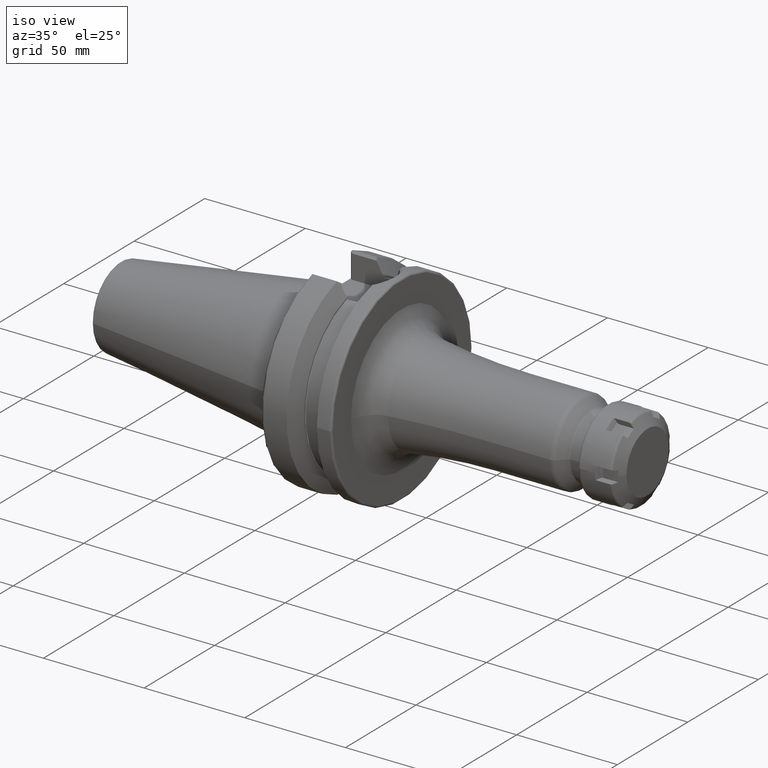
[diagram: clean part render]
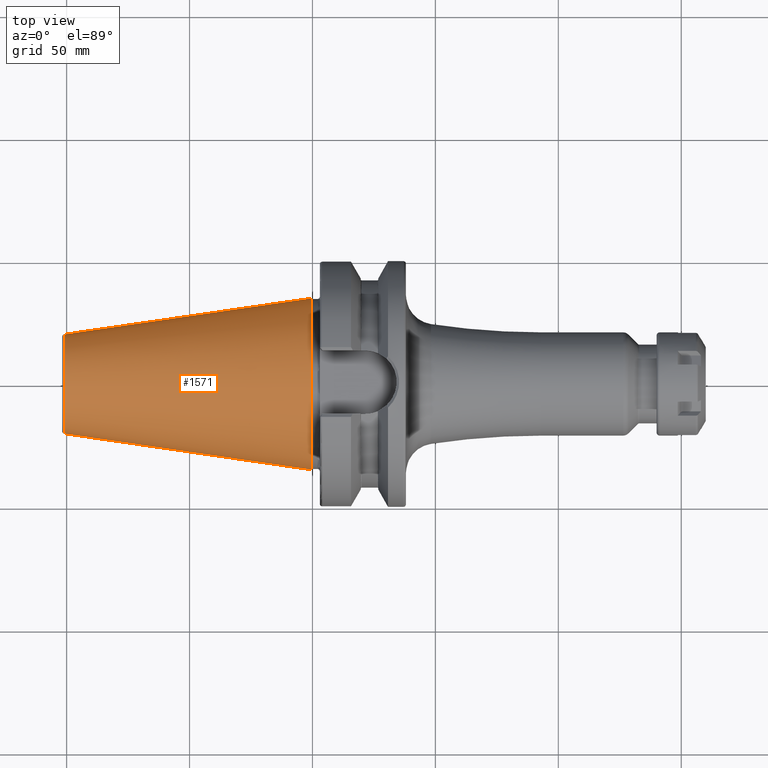
[diagram: tour spotlight — one face highlighted and labeled with its STEP entity id]
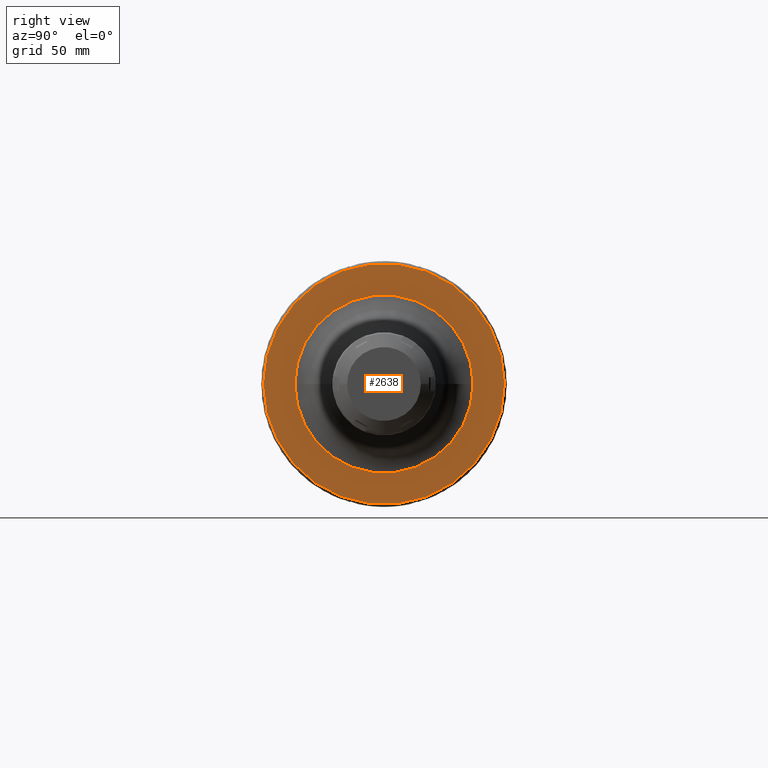
[diagram: tour spotlight — one face highlighted and labeled with its STEP entity id]
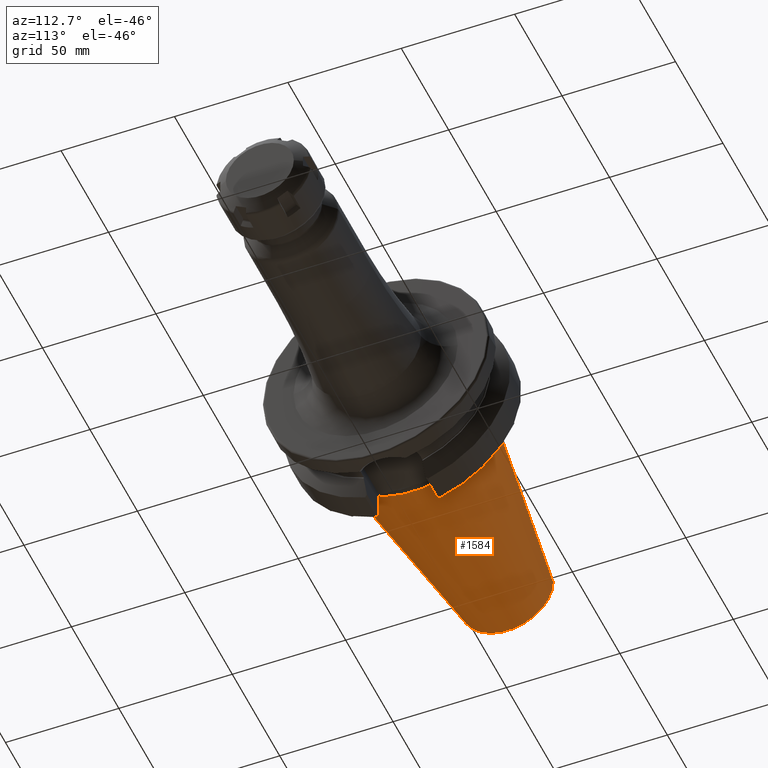
[diagram: tour spotlight — one face highlighted and labeled with its STEP entity id]
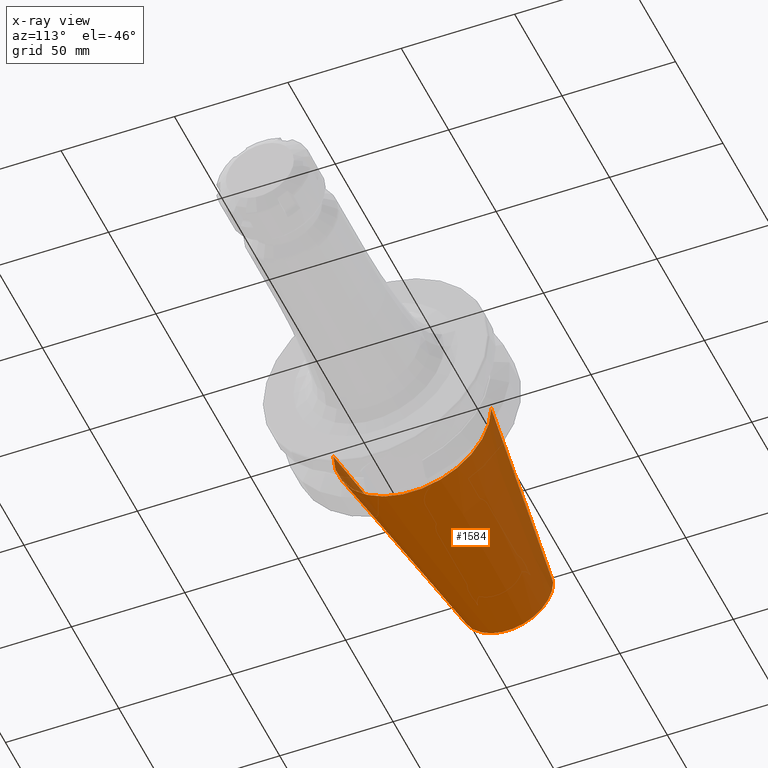
[diagram: x-ray of the same camera — body ghosted, this tour face saturated]
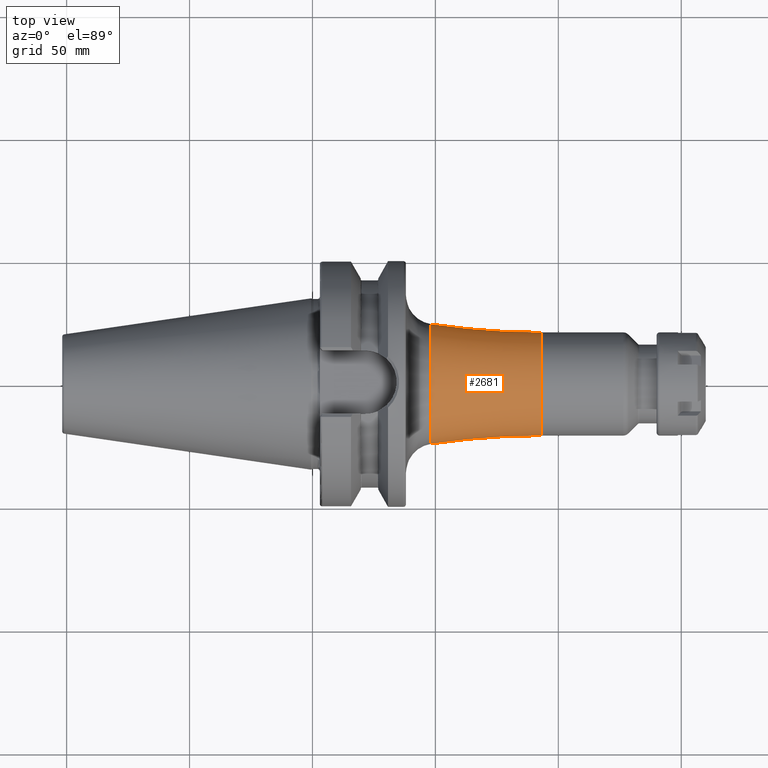
[diagram: tour spotlight — one face highlighted and labeled with its STEP entity id]
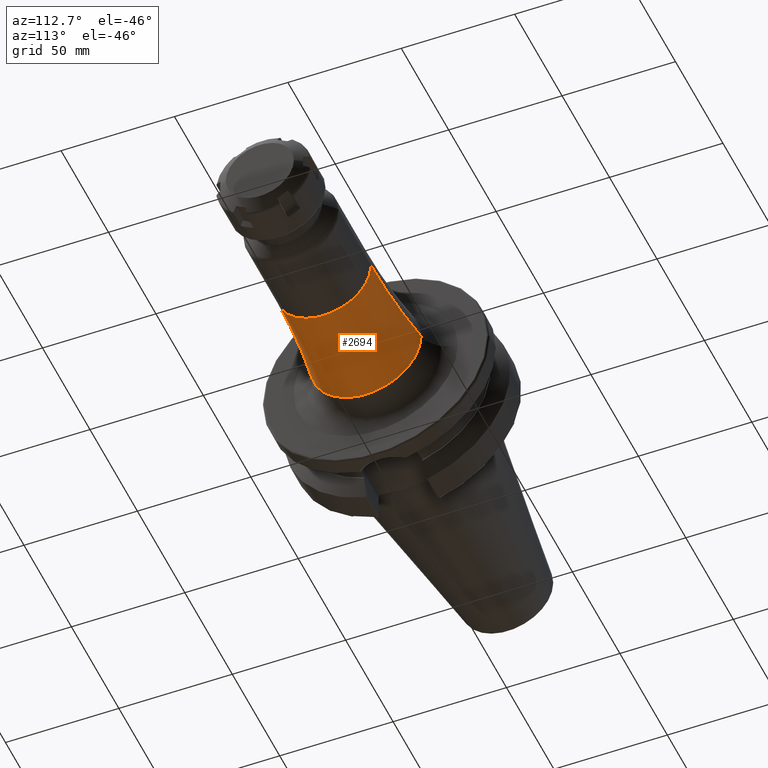
[diagram: tour spotlight — one face highlighted and labeled with its STEP entity id]
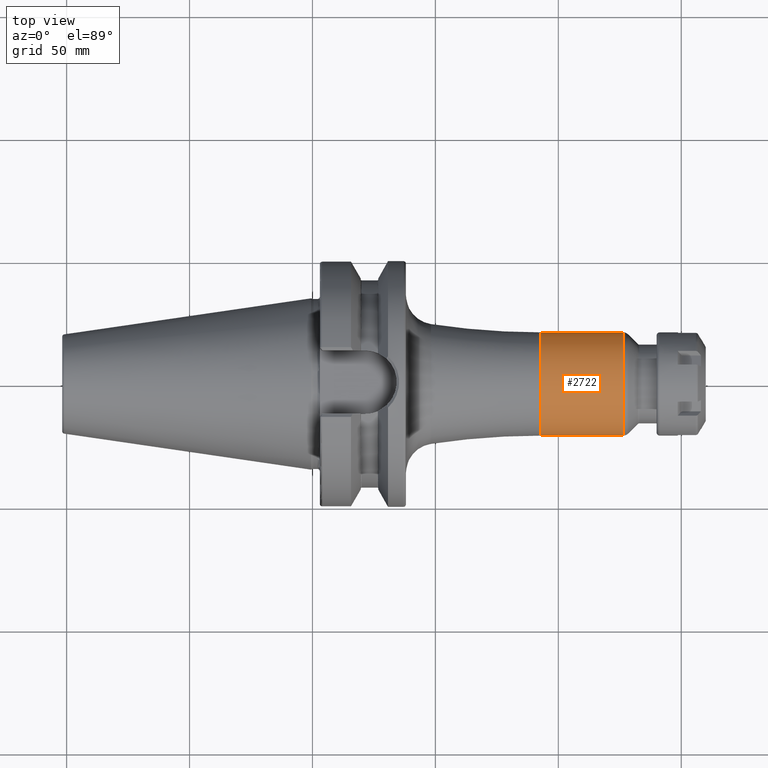
[diagram: tour spotlight — one face highlighted and labeled with its STEP entity id]
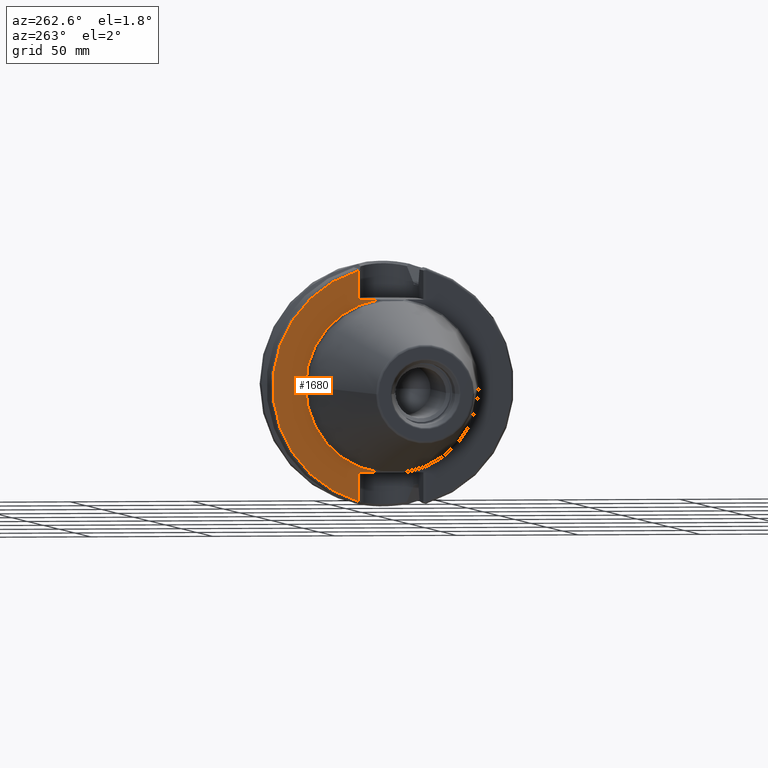
[diagram: tour spotlight — one face highlighted and labeled with its STEP entity id]
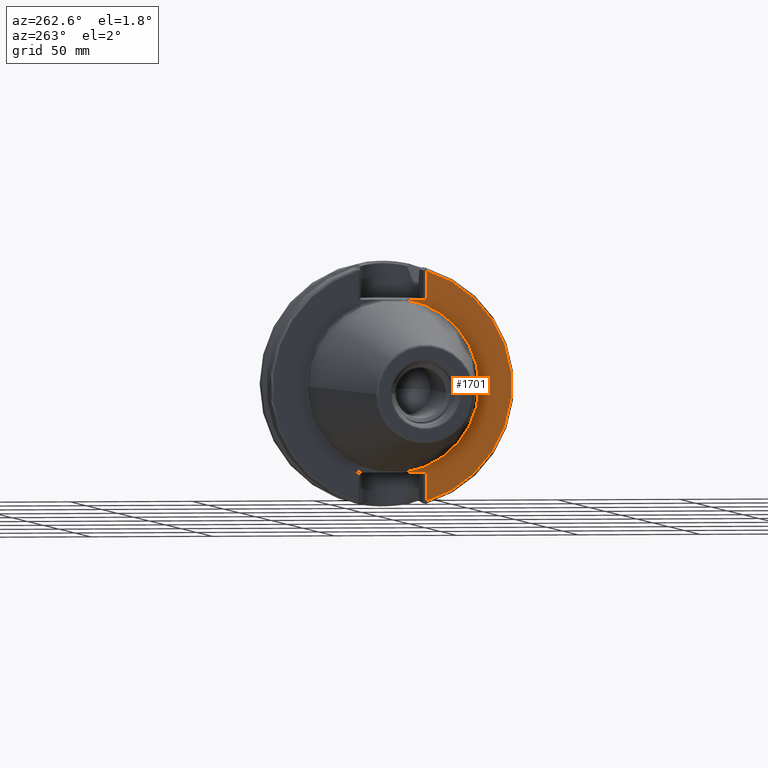
[diagram: tour spotlight — one face highlighted and labeled with its STEP entity id]
A machine part: a face-by-face anatomy tour. The part has 148 B-rep faces; the first image is the clean iso view, then the 8 largest visible faces are spotlighted one at a time (largest first), each with its STEP entity span.

Face 1 — top view, entity #1571. In plain terms, the highlighted conical surface has half-angle 8.298 deg.
Definition (entity closure, byte-faithful):
#37=CARTESIAN_POINT('',(-1.009443186692E2,0.E0,0.E0));
#38=DIRECTION('',(1.E0,0.E0,0.E0));
#39=DIRECTION('',(0.E0,1.E0,0.E0));
#40=AXIS2_PLACEMENT_3D('',#37,#38,#39);
#42=CARTESIAN_POINT('',(-6.191906162850E-1,0.E0,0.E0));
#43=DIRECTION('',(1.E0,0.E0,0.E0));
#44=DIRECTION('',(0.E0,1.E0,0.E0));
#45=AXIS2_PLACEMENT_3D('',#42,#43,#44);
#47=DIRECTION('',(-9.895312636440E-1,-1.443186691705E-1,0.E0));
#48=VECTOR('',#47,1.013865167670E2);
#49=CARTESIAN_POINT('',(-6.191906162849E-1,3.483469384295E1,0.E0));
#50=LINE('',#49,#48);
#51=DIRECTION('',(-9.895312636440E-1,1.443186691705E-1,0.E0));
#52=VECTOR('',#51,1.013865167670E2);
#53=CARTESIAN_POINT('',(-6.191906162849E-1,-3.483469384295E1,0.E0));
#54=LINE('',#53,#52);
#1244=CARTESIAN_POINT('',(-1.009443186692E2,2.020272667130E1,0.E0));
#1246=VERTEX_POINT('',#1244);
#1248=CARTESIAN_POINT('',(-1.009443186692E2,-2.020272667130E1,0.E0));
#1250=VERTEX_POINT('',#1248);
#1463=CARTESIAN_POINT('',(-6.191906162849E-1,3.483469384295E1,0.E0));
#1464=VERTEX_POINT('',#1463);
#1465=CARTESIAN_POINT('',(-6.191906162849E-1,-3.483469384295E1,0.E0));
#1466=VERTEX_POINT('',#1465);
#1557=CARTESIAN_POINT('',(-5.078175464273E1,0.E0,0.E0));
#1558=DIRECTION('',(1.E0,0.E0,0.E0));
#1559=DIRECTION('',(0.E0,-1.E0,0.E0));
#1560=AXIS2_PLACEMENT_3D('',#1557,#1558,#1559);
#1561=CONICAL_SURFACE('',#1560,2.751871025712E1,8.297826828206E0);
#1563=ORIENTED_EDGE('',*,*,#1562,.F.);
#1565=ORIENTED_EDGE('',*,*,#1564,.T.);
#1567=ORIENTED_EDGE('',*,*,#1566,.T.);
#1568=ORIENTED_EDGE('',*,*,#1550,.F.);
#1569=EDGE_LOOP('',(#1563,#1565,#1567,#1568));
#1570=FACE_OUTER_BOUND('',#1569,.F.);
#1571=ADVANCED_FACE('',(#1570),#1561,.T.);
#41=CIRCLE('',#40,2.020272667130E1);
#46=CIRCLE('',#45,3.483469384295E1);
#1550=EDGE_CURVE('',#1246,#1250,#41,.T.);
#1562=EDGE_CURVE('',#1464,#1246,#50,.T.);
#1564=EDGE_CURVE('',#1464,#1466,#46,.T.);
#1566=EDGE_CURVE('',#1466,#1250,#54,.T.);

Face 2 — right view, entity #2638. In plain terms, the highlighted planar face has unit normal (1, 0, 0).
Definition (entity closure, byte-faithful):
#814=CARTESIAN_POINT('',(3.8E1,0.E0,0.E0));
#815=DIRECTION('',(1.E0,0.E0,0.E0));
#816=DIRECTION('',(0.E0,1.E0,0.E0));
#817=AXIS2_PLACEMENT_3D('',#814,#815,#816);
#829=CARTESIAN_POINT('',(3.8E1,0.E0,0.E0));
#830=DIRECTION('',(-1.E0,0.E0,0.E0));
#831=DIRECTION('',(0.E0,1.E0,0.E0));
#832=AXIS2_PLACEMENT_3D('',#829,#830,#831);
#834=CARTESIAN_POINT('',(3.8E1,0.E0,0.E0));
#835=DIRECTION('',(1.E0,0.E0,0.E0));
#836=DIRECTION('',(0.E0,-1.E0,0.E0));
#837=AXIS2_PLACEMENT_3D('',#834,#835,#836);
#839=CARTESIAN_POINT('',(3.8E1,0.E0,0.E0));
#840=DIRECTION('',(1.E0,0.E0,0.E0));
#841=DIRECTION('',(0.E0,1.E0,0.E0));
#842=AXIS2_PLACEMENT_3D('',#839,#840,#841);
#1378=CARTESIAN_POINT('',(3.8E1,4.89875E1,0.E0));
#1379=VERTEX_POINT('',#1378);
#1380=CARTESIAN_POINT('',(3.8E1,-4.89875E1,-1.199847701465E-14));
#1381=VERTEX_POINT('',#1380);
#1503=CARTESIAN_POINT('',(3.8E1,-3.622816150469E1,-2.126174933981E-13));
#1504=CARTESIAN_POINT('',(3.8E1,3.622816150469E1,2.081808231955E-13));
#1505=VERTEX_POINT('',#1503);
#1506=VERTEX_POINT('',#1504);
#2623=CARTESIAN_POINT('',(3.8E1,0.E0,0.E0));
#2624=DIRECTION('',(1.E0,0.E0,0.E0));
#2625=DIRECTION('',(0.E0,-1.E0,0.E0));
#2626=AXIS2_PLACEMENT_3D('',#2623,#2624,#2625);
#2627=PLANE('',#2626);
#2628=ORIENTED_EDGE('',*,*,#2618,.T.);
#2629=ORIENTED_EDGE('',*,*,#2602,.F.);
#2630=EDGE_LOOP('',(#2628,#2629));
#2631=FACE_OUTER_BOUND('',#2630,.F.);
#2633=ORIENTED_EDGE('',*,*,#2632,.T.);
#2635=ORIENTED_EDGE('',*,*,#2634,.T.);
#2636=EDGE_LOOP('',(#2633,#2635));
#2637=FACE_BOUND('',#2636,.F.);
#2638=ADVANCED_FACE('',(#2631,#2637),#2627,.T.);
#818=CIRCLE('',#817,4.89875E1);
#833=CIRCLE('',#832,4.89875E1);
#838=CIRCLE('',#837,3.622816150469E1);
#843=CIRCLE('',#842,3.622816150469E1);
#2602=EDGE_CURVE('',#1379,#1381,#818,.T.);
#2618=EDGE_CURVE('',#1379,#1381,#833,.T.);
#2632=EDGE_CURVE('',#1505,#1506,#838,.T.);
#2634=EDGE_CURVE('',#1506,#1505,#843,.T.);

Face 3 — auxiliary view, entity #1584. An x-ray twin of the same camera follows (body ghosted, this face saturated) — the face is partly hidden behind the body. In plain terms, the highlighted conical surface has half-angle 8.298 deg.
Definition (entity closure, byte-faithful):
#32=CARTESIAN_POINT('',(-1.009443186692E2,0.E0,0.E0));
#33=DIRECTION('',(-1.E0,0.E0,0.E0));
#34=DIRECTION('',(0.E0,1.E0,0.E0));
#35=AXIS2_PLACEMENT_3D('',#32,#33,#34);
#47=DIRECTION('',(-9.895312636440E-1,-1.443186691705E-1,0.E0));
#48=VECTOR('',#47,1.013865167670E2);
#49=CARTESIAN_POINT('',(-6.191906162849E-1,3.483469384295E1,0.E0));
#50=LINE('',#49,#48);
#51=DIRECTION('',(-9.895312636440E-1,1.443186691705E-1,0.E0));
#52=VECTOR('',#51,1.013865167670E2);
#53=CARTESIAN_POINT('',(-6.191906162849E-1,-3.483469384295E1,0.E0));
#54=LINE('',#53,#52);
#55=CARTESIAN_POINT('',(-6.191906162850E-1,0.E0,0.E0));
#56=DIRECTION('',(-1.E0,0.E0,0.E0));
#57=DIRECTION('',(0.E0,1.E0,0.E0));
#58=AXIS2_PLACEMENT_3D('',#55,#56,#57);
#1244=CARTESIAN_POINT('',(-1.009443186692E2,2.020272667130E1,0.E0));
#1246=VERTEX_POINT('',#1244);
#1248=CARTESIAN_POINT('',(-1.009443186692E2,-2.020272667130E1,0.E0));
#1250=VERTEX_POINT('',#1248);
#1463=CARTESIAN_POINT('',(-6.191906162849E-1,3.483469384295E1,0.E0));
#1464=VERTEX_POINT('',#1463);
#1465=CARTESIAN_POINT('',(-6.191906162849E-1,-3.483469384295E1,0.E0));
#1466=VERTEX_POINT('',#1465);
#1572=CARTESIAN_POINT('',(-5.078175464273E1,0.E0,0.E0));
#1573=DIRECTION('',(1.E0,0.E0,0.E0));
#1574=DIRECTION('',(0.E0,-1.E0,0.E0));
#1575=AXIS2_PLACEMENT_3D('',#1572,#1573,#1574);
#1576=CONICAL_SURFACE('',#1575,2.751871025712E1,8.297826828206E0);
#1577=ORIENTED_EDGE('',*,*,#1562,.T.);
#1578=ORIENTED_EDGE('',*,*,#1539,.T.);
#1579=ORIENTED_EDGE('',*,*,#1566,.F.);
#1581=ORIENTED_EDGE('',*,*,#1580,.F.);
#1582=EDGE_LOOP('',(#1577,#1578,#1579,#1581));
#1583=FACE_OUTER_BOUND('',#1582,.F.);
#1584=ADVANCED_FACE('',(#1583),#1576,.T.);
#36=CIRCLE('',#35,2.020272667130E1);
#59=CIRCLE('',#58,3.483469384295E1);
#1539=EDGE_CURVE('',#1246,#1250,#36,.T.);
#1562=EDGE_CURVE('',#1464,#1246,#50,.T.);
#1566=EDGE_CURVE('',#1466,#1250,#54,.T.);
#1580=EDGE_CURVE('',#1464,#1466,#59,.T.);

Face 4 — top view, entity #2681. In plain terms, the highlighted toroidal blend (fillet) surface has major radius 321 mm and minor (blend) radius 300 mm.
Definition (entity closure, byte-faithful):
#854=CARTESIAN_POINT('',(4.820833333333E1,0.E0,0.E0));
#855=DIRECTION('',(1.E0,0.E0,0.E0));
#856=DIRECTION('',(0.E0,1.E0,0.E0));
#857=AXIS2_PLACEMENT_3D('',#854,#855,#856);
#864=CARTESIAN_POINT('',(9.3E1,-3.21E2,-7.862232450526E-14));
#865=DIRECTION('',(0.E0,0.E0,1.E0));
#866=DIRECTION('',(0.E0,1.E0,0.E0));
#867=AXIS2_PLACEMENT_3D('',#864,#865,#866);
#869=CARTESIAN_POINT('',(9.3E1,3.21E2,3.931116225263E-14));
#870=DIRECTION('',(0.E0,0.E0,-1.E0));
#871=DIRECTION('',(0.E0,-1.E0,0.E0));
#872=AXIS2_PLACEMENT_3D('',#869,#870,#871);
#892=CARTESIAN_POINT('',(9.3E1,0.E0,0.E0));
#893=DIRECTION('',(1.E0,0.E0,0.E0));
#894=DIRECTION('',(0.E0,1.E0,0.E0));
#895=AXIS2_PLACEMENT_3D('',#892,#893,#894);
#1499=CARTESIAN_POINT('',(9.3E1,2.1E1,0.E0));
#1500=CARTESIAN_POINT('',(9.3E1,-2.1E1,0.E0));
#1501=VERTEX_POINT('',#1499);
#1502=VERTEX_POINT('',#1500);
#1507=CARTESIAN_POINT('',(4.820833333333E1,-2.436266823405E1,0.E0));
#1508=CARTESIAN_POINT('',(4.820833333333E1,2.436266823405E1,0.E0));
#1509=VERTEX_POINT('',#1507);
#1510=VERTEX_POINT('',#1508);
#2667=CARTESIAN_POINT('',(9.3E1,0.E0,0.E0));
#2668=DIRECTION('',(1.E0,0.E0,0.E0));
#2669=DIRECTION('',(0.E0,-1.E0,0.E0));
#2670=AXIS2_PLACEMENT_3D('',#2667,#2668,#2669);
#2671=TOROIDAL_SURFACE('',#2670,3.21E2,3.E2);
#2672=ORIENTED_EDGE('',*,*,#2661,.F.);
#2674=ORIENTED_EDGE('',*,*,#2673,.F.);
#2676=ORIENTED_EDGE('',*,*,#2675,.T.);
#2678=ORIENTED_EDGE('',*,*,#2677,.T.);
#2679=EDGE_LOOP('',(#2672,#2674,#2676,#2678));
#2680=FACE_OUTER_BOUND('',#2679,.F.);
#2681=ADVANCED_FACE('',(#2680),#2671,.F.);
#858=CIRCLE('',#857,2.436266823405E1);
#868=CIRCLE('',#867,3.E2);
#873=CIRCLE('',#872,3.E2);
#896=CIRCLE('',#895,2.1E1);
#2661=EDGE_CURVE('',#1510,#1509,#858,.T.);
#2673=EDGE_CURVE('',#1501,#1510,#873,.T.);
#2675=EDGE_CURVE('',#1501,#1502,#896,.T.);
#2677=EDGE_CURVE('',#1502,#1509,#868,.T.);

Face 5 — auxiliary view, entity #2694. In plain terms, the highlighted toroidal blend (fillet) surface has major radius 321 mm and minor (blend) radius 300 mm.
Definition (entity closure, byte-faithful):
#859=CARTESIAN_POINT('',(4.820833333333E1,0.E0,0.E0));
#860=DIRECTION('',(1.E0,0.E0,0.E0));
#861=DIRECTION('',(0.E0,-1.E0,0.E0));
#862=AXIS2_PLACEMENT_3D('',#859,#860,#861);
#864=CARTESIAN_POINT('',(9.3E1,-3.21E2,-7.862232450526E-14));
#865=DIRECTION('',(0.E0,0.E0,1.E0));
#866=DIRECTION('',(0.E0,1.E0,0.E0));
#867=AXIS2_PLACEMENT_3D('',#864,#865,#866);
#869=CARTESIAN_POINT('',(9.3E1,3.21E2,3.931116225263E-14));
#870=DIRECTION('',(0.E0,0.E0,-1.E0));
#871=DIRECTION('',(0.E0,-1.E0,0.E0));
#872=AXIS2_PLACEMENT_3D('',#869,#870,#871);
#874=CARTESIAN_POINT('',(9.3E1,0.E0,0.E0));
#875=DIRECTION('',(1.E0,0.E0,0.E0));
#876=DIRECTION('',(0.E0,-1.E0,0.E0));
#877=AXIS2_PLACEMENT_3D('',#874,#875,#876);
#1499=CARTESIAN_POINT('',(9.3E1,2.1E1,0.E0));
#1500=CARTESIAN_POINT('',(9.3E1,-2.1E1,0.E0));
#1501=VERTEX_POINT('',#1499);
#1502=VERTEX_POINT('',#1500);
#1507=CARTESIAN_POINT('',(4.820833333333E1,-2.436266823405E1,0.E0));
#1508=CARTESIAN_POINT('',(4.820833333333E1,2.436266823405E1,0.E0));
#1509=VERTEX_POINT('',#1507);
#1510=VERTEX_POINT('',#1508);
#2682=CARTESIAN_POINT('',(9.3E1,0.E0,0.E0));
#2683=DIRECTION('',(1.E0,0.E0,0.E0));
#2684=DIRECTION('',(0.E0,-1.E0,0.E0));
#2685=AXIS2_PLACEMENT_3D('',#2682,#2683,#2684);
#2686=TOROIDAL_SURFACE('',#2685,3.21E2,3.E2);
#2687=ORIENTED_EDGE('',*,*,#2647,.F.);
#2688=ORIENTED_EDGE('',*,*,#2677,.F.);
#2690=ORIENTED_EDGE('',*,*,#2689,.T.);
#2691=ORIENTED_EDGE('',*,*,#2673,.T.);
#2692=EDGE_LOOP('',(#2687,#2688,#2690,#2691));
#2693=FACE_OUTER_BOUND('',#2692,.F.);
#2694=ADVANCED_FACE('',(#2693),#2686,.F.);
#863=CIRCLE('',#862,2.436266823405E1);
#868=CIRCLE('',#867,3.E2);
#873=CIRCLE('',#872,3.E2);
#878=CIRCLE('',#877,2.1E1);
#2647=EDGE_CURVE('',#1509,#1510,#863,.T.);
#2673=EDGE_CURVE('',#1501,#1510,#873,.T.);
#2677=EDGE_CURVE('',#1502,#1509,#868,.T.);
#2689=EDGE_CURVE('',#1502,#1501,#878,.T.);

Face 6 — top view, entity #2722. In plain terms, the highlighted cylindrical surface (partial cylindrical patch) has radius 21 mm, axis along (1, 0, 0).
Definition (entity closure, byte-faithful):
#879=DIRECTION('',(-1.E0,0.E0,-5.970794978047E-14));
#880=VECTOR('',#879,3.335735931288E1);
#881=CARTESIAN_POINT('',(1.263573593129E2,-2.1E1,1.988284730810E-12));
#882=LINE('',#881,#880);
#888=DIRECTION('',(-1.E0,0.E0,5.970195092418E-14));
#889=VECTOR('',#888,3.335735931288E1);
#890=CARTESIAN_POINT('',(1.263573593129E2,2.1E1,-1.988927670380E-12));
#891=LINE('',#890,#889);
#892=CARTESIAN_POINT('',(9.3E1,0.E0,0.E0));
#893=DIRECTION('',(1.E0,0.E0,0.E0));
#894=DIRECTION('',(0.E0,1.E0,0.E0));
#895=AXIS2_PLACEMENT_3D('',#892,#893,#894);
#897=CARTESIAN_POINT('',(1.263573593129E2,0.E0,0.E0));
#898=DIRECTION('',(-1.E0,0.E0,0.E0));
#899=DIRECTION('',(0.E0,-1.E0,0.E0));
#900=AXIS2_PLACEMENT_3D('',#897,#898,#899);
#1491=CARTESIAN_POINT('',(1.263573593129E2,2.1E1,0.E0));
#1492=CARTESIAN_POINT('',(1.263573593129E2,-2.1E1,0.E0));
#1493=VERTEX_POINT('',#1491);
#1494=VERTEX_POINT('',#1492);
#1499=CARTESIAN_POINT('',(9.3E1,2.1E1,0.E0));
#1500=CARTESIAN_POINT('',(9.3E1,-2.1E1,0.E0));
#1501=VERTEX_POINT('',#1499);
#1502=VERTEX_POINT('',#1500);
#2710=CARTESIAN_POINT('',(3.2495E1,0.E0,0.E0));
#2711=DIRECTION('',(1.E0,0.E0,0.E0));
#2712=DIRECTION('',(0.E0,-1.E0,0.E0));
#2713=AXIS2_PLACEMENT_3D('',#2710,#2711,#2712);
#2714=CYLINDRICAL_SURFACE('',#2713,2.1E1);
#2715=ORIENTED_EDGE('',*,*,#2675,.F.);
#2716=ORIENTED_EDGE('',*,*,#2705,.F.);
#2718=ORIENTED_EDGE('',*,*,#2717,.F.);
#2719=ORIENTED_EDGE('',*,*,#2701,.T.);
#2720=EDGE_LOOP('',(#2715,#2716,#2718,#2719));
#2721=FACE_OUTER_BOUND('',#2720,.F.);
#2722=ADVANCED_FACE('',(#2721),#2714,.T.);
#896=CIRCLE('',#895,2.1E1);
#901=CIRCLE('',#900,2.1E1);
#2675=EDGE_CURVE('',#1501,#1502,#896,.T.);
#2701=EDGE_CURVE('',#1494,#1502,#882,.T.);
#2705=EDGE_CURVE('',#1493,#1501,#891,.T.);
#2717=EDGE_CURVE('',#1494,#1493,#901,.T.);

Face 7 — auxiliary view, entity #1680. In plain terms, the highlighted planar face has unit normal (1, 0, 0).
Definition (entity closure, byte-faithful):
#96=CARTESIAN_POINT('',(3.E0,0.E0,0.E0));
#97=DIRECTION('',(-1.E0,0.E0,0.E0));
#98=DIRECTION('',(0.E0,1.E0,0.E0));
#99=AXIS2_PLACEMENT_3D('',#96,#97,#98);
#127=DIRECTION('',(5.798787724366E-7,5.799135248072E-7,9.999999999997E-1));
#128=VECTOR('',#127,1.177335004622E1);
#129=CARTESIAN_POINT('',(2.999993172884E0,1.390249317248E1,-4.697335004621E1));
#130=LINE('',#129,#128);
#131=DIRECTION('',(-1.226013541637E-6,-1.226161370240E-6,9.999999999985E-1));
#132=VECTOR('',#131,1.177335390080E1);
#133=CARTESIAN_POINT('',(3.E0,1.39025E1,3.52E1));
#134=LINE('',#133,#132);
#588=CARTESIAN_POINT('',(3.E0,0.E0,0.E0));
#589=DIRECTION('',(-1.E0,0.E0,0.E0));
#590=DIRECTION('',(0.E0,2.837969049058E-1,9.588844126201E-1));
#591=AXIS2_PLACEMENT_3D('',#588,#589,#590);
#683=DIRECTION('',(0.E0,1.E0,0.E0));
#684=VECTOR('',#683,8.750740591798E0);
#685=CARTESIAN_POINT('',(3.E0,5.151759408202E0,3.52E1));
#686=LINE('',#685,#684);
#704=CARTESIAN_POINT('',(3.E0,0.E0,0.E0));
#705=DIRECTION('',(1.E0,0.E0,0.E0));
#706=DIRECTION('',(0.E0,1.E0,0.E0));
#707=AXIS2_PLACEMENT_3D('',#704,#705,#706);
#741=DIRECTION('',(0.E0,-1.E0,0.E0));
#742=VECTOR('',#741,8.750740591798E0);
#743=CARTESIAN_POINT('',(3.E0,1.39025E1,-3.52E1));
#744=LINE('',#743,#742);
#1316=CARTESIAN_POINT('',(3.E0,3.5575E1,0.E0));
#1318=VERTEX_POINT('',#1316);
#1386=CARTESIAN_POINT('',(3.E0,5.151759408202E0,3.52E1));
#1387=VERTEX_POINT('',#1386);
#1394=CARTESIAN_POINT('',(3.E0,5.151759408202E0,-3.52E1));
#1395=VERTEX_POINT('',#1394);
#1432=CARTESIAN_POINT('',(3.E0,1.390251954398E1,4.697334463905E1));
#1434=VERTEX_POINT('',#1432);
#1436=CARTESIAN_POINT('',(3.E0,1.39025E1,3.52E1));
#1437=VERTEX_POINT('',#1436);
#1446=CARTESIAN_POINT('',(2.999993172884E0,1.390249317248E1,-4.697335004621E1));
#1447=CARTESIAN_POINT('',(3.E0,1.39025E1,-3.52E1));
#1448=VERTEX_POINT('',#1446);
#1449=VERTEX_POINT('',#1447);
#1660=CARTESIAN_POINT('',(3.E0,0.E0,0.E0));
#1661=DIRECTION('',(1.E0,0.E0,0.E0));
#1662=DIRECTION('',(0.E0,-1.E0,0.E0));
#1663=AXIS2_PLACEMENT_3D('',#1660,#1661,#1662);
#1664=PLANE('',#1663);
#1666=ORIENTED_EDGE('',*,*,#1665,.F.);
#1668=ORIENTED_EDGE('',*,*,#1667,.F.);
#1670=ORIENTED_EDGE('',*,*,#1669,.F.);
#1672=ORIENTED_EDGE('',*,*,#1671,.F.);
#1674=ORIENTED_EDGE('',*,*,#1673,.F.);
#1675=ORIENTED_EDGE('',*,*,#1646,.T.);
#1677=ORIENTED_EDGE('',*,*,#1676,.F.);
#1678=EDGE_LOOP('',(#1666,#1668,#1670,#1672,#1674,#1675,#1677));
#1679=FACE_OUTER_BOUND('',#1678,.F.);
#1680=ADVANCED_FACE('',(#1679),#1664,.F.);
#100=CIRCLE('',#99,3.5575E1);
#592=CIRCLE('',#591,4.89875E1);
#708=CIRCLE('',#707,3.5575E1);
#1646=EDGE_CURVE('',#1318,#1395,#100,.T.);
#1665=EDGE_CURVE('',#1448,#1449,#130,.T.);
#1667=EDGE_CURVE('',#1434,#1448,#592,.T.);
#1669=EDGE_CURVE('',#1437,#1434,#134,.T.);
#1671=EDGE_CURVE('',#1387,#1437,#686,.T.);
#1673=EDGE_CURVE('',#1318,#1387,#708,.T.);
#1676=EDGE_CURVE('',#1449,#1395,#744,.T.);

Face 8 — auxiliary view, entity #1701. In plain terms, the highlighted planar face has unit normal (1, 0, 0).
Definition (entity closure, byte-faithful):
#111=CARTESIAN_POINT('',(3.E0,0.E0,0.E0));
#112=DIRECTION('',(-1.E0,0.E0,0.E0));
#113=DIRECTION('',(0.E0,-1.448140381786E-1,-9.894588896697E-1));
#114=AXIS2_PLACEMENT_3D('',#111,#112,#113);
#135=DIRECTION('',(-5.798787725116E-7,5.799135254102E-7,-9.999999999997E-1));
#136=VECTOR('',#135,1.177335004623E1);
#137=CARTESIAN_POINT('',(3.E0,-1.39025E1,-3.52E1));
#138=LINE('',#137,#136);
#139=DIRECTION('',(1.226013541690E-6,-1.226161370859E-6,-9.999999999985E-1));
#140=VECTOR('',#139,1.177335390066E1);
#141=CARTESIAN_POINT('',(2.999985565709E0,-1.390248556397E1,4.697335390064E1));
#142=LINE('',#141,#140);
#593=CARTESIAN_POINT('',(2.999993172884E0,-1.390249317248E1,-4.697335004622E1));
#605=CARTESIAN_POINT('',(3.E0,0.E0,0.E0));
#606=DIRECTION('',(-1.E0,0.E0,0.E0));
#607=DIRECTION('',(0.E0,-2.837968955579E-1,-9.588844153868E-1));
#608=AXIS2_PLACEMENT_3D('',#605,#606,#607);
#679=DIRECTION('',(0.E0,1.E0,0.E0));
#680=VECTOR('',#679,8.750740591798E0);
#681=CARTESIAN_POINT('',(3.E0,-1.39025E1,3.52E1));
#682=LINE('',#681,#680);
#720=CARTESIAN_POINT('',(3.E0,0.E0,0.E0));
#721=DIRECTION('',(1.E0,0.E0,0.E0));
#722=DIRECTION('',(0.E0,-1.448140381786E-1,9.894588896697E-1));
#723=AXIS2_PLACEMENT_3D('',#720,#721,#722);
#745=DIRECTION('',(0.E0,-1.E0,0.E0));
#746=VECTOR('',#745,8.750740591798E0);
#747=CARTESIAN_POINT('',(3.E0,-5.151759408202E0,-3.52E1));
#748=LINE('',#747,#746);
#1322=CARTESIAN_POINT('',(3.E0,-3.5575E1,0.E0));
#1324=VERTEX_POINT('',#1322);
#1388=CARTESIAN_POINT('',(3.E0,-5.151759408202E0,3.52E1));
#1389=VERTEX_POINT('',#1388);
#1396=CARTESIAN_POINT('',(3.E0,-5.151759408202E0,-3.52E1));
#1397=VERTEX_POINT('',#1396);
#1426=CARTESIAN_POINT('',(2.999985565709E0,-1.390248556397E1,4.697335390064E1));
#1427=CARTESIAN_POINT('',(3.E0,-1.39025E1,3.52E1));
#1428=VERTEX_POINT('',#1426);
#1429=VERTEX_POINT('',#1427);
#1451=VERTEX_POINT('',#593);
#1453=CARTESIAN_POINT('',(3.E0,-1.39025E1,-3.52E1));
#1454=VERTEX_POINT('',#1453);
#1681=CARTESIAN_POINT('',(3.E0,0.E0,0.E0));
#1682=DIRECTION('',(1.E0,0.E0,0.E0));
#1683=DIRECTION('',(0.E0,-1.E0,0.E0));
#1684=AXIS2_PLACEMENT_3D('',#1681,#1682,#1683);
#1685=PLANE('',#1684);
#1687=ORIENTED_EDGE('',*,*,#1686,.F.);
#1689=ORIENTED_EDGE('',*,*,#1688,.F.);
#1690=ORIENTED_EDGE('',*,*,#1653,.T.);
#1692=ORIENTED_EDGE('',*,*,#1691,.F.);
#1694=ORIENTED_EDGE('',*,*,#1693,.F.);
#1696=ORIENTED_EDGE('',*,*,#1695,.F.);
#1698=ORIENTED_EDGE('',*,*,#1697,.F.);
#1699=EDGE_LOOP('',(#1687,#1689,#1690,#1692,#1694,#1696,#1698));
#1700=FACE_OUTER_BOUND('',#1699,.F.);
#1701=ADVANCED_FACE('',(#1700),#1685,.F.);
#115=CIRCLE('',#114,3.5575E1);
#609=CIRCLE('',#608,4.89875E1);
#724=CIRCLE('',#723,3.5575E1);
#1653=EDGE_CURVE('',#1397,#1324,#115,.T.);
#1686=EDGE_CURVE('',#1454,#1451,#138,.T.);
#1688=EDGE_CURVE('',#1397,#1454,#748,.T.);
#1691=EDGE_CURVE('',#1389,#1324,#724,.T.);
#1693=EDGE_CURVE('',#1429,#1389,#682,.T.);
#1695=EDGE_CURVE('',#1428,#1429,#142,.T.);
#1697=EDGE_CURVE('',#1451,#1428,#609,.T.);